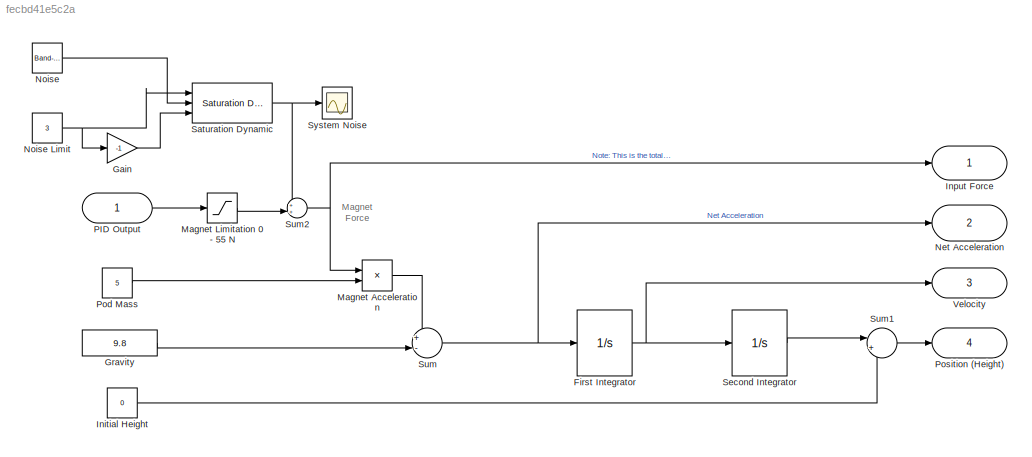
MODEL slx_fecbd41e5c2a
KIND model
CONFIG AbsTol = auto
CONFIG EnableMultiTasking = off
CONFIG FixedStep = auto
CONFIG MaxStep = auto
CONFIG MinStep = auto
CONFIG RelTol = 1e-3
CONFIG SampleTimeConstraint = Unconstrained
CONFIG Solver = VariableStepAuto
CONFIG SolverName = VariableStepAuto
CONFIG StartTime = 0.0
CONFIG StopTime = 10.0
BLOCK [Integrator] First Integrator
  Ports = [1, 1]
BLOCK [Gain] Gain
  Gain = -1
  OutDataTypeStr = Inherit: Inherit via internal rule
  ParamDataTypeStr = Inherit: Inherit via internal rule
  SaturateOnIntegerOverflow = off
BLOCK [Constant] Gravity
  Value = 9.8
BLOCK [Constant] Initial Height
  Value = 0
BLOCK [Outport] Input Force
  IconDisplay = Port number
BLOCK [Product] Magnet Acceleration
  InputSameDT = off
  Inputs = */
  OutDataTypeStr = Inherit: Inherit via internal rule
  Ports = [2, 1]
  RndMeth = Floor
  SaturateOnIntegerOverflow = off
BLOCK [Saturate] Magnet Limitation 0 - 55 N
  InputPortMap = u0
  LowerLimit = 0
  Ports = [1, 1]
  UpperLimit = 55
BLOCK [Outport] Net Acceleration
  IconDisplay = Port number
  Port = 2
BLOCK [Reference] Noise   REF=simulink/Sources/Band-Limited
White Noise
  Ports = [0, 1]
  SourceBlock = simulink/Sources/Band-Limited\nWhite Noise
  SourceProductBaseCode = SL
  SourceProductName = Simulink
  SourceType = Band-Limited White Noise.
BLOCK [Constant] Noise Limit
  Value = 3
BLOCK [Inport] PID Output
  IconDisplay = Port number
BLOCK [Constant] Pod Mass
  Value = 5
BLOCK [Outport] Position (Height)
  IconDisplay = Port number
  Port = 4
BLOCK [Reference] Saturation Dynamic  REF=simulink/Discontinuities/Saturation
Dynamic
  Ports = [3, 1]
  SourceBlock = simulink/Discontinuities/Saturation\nDynamic
  SourceProductBaseCode = SL
  SourceProductName = Simulink
  SourceType = Saturation Dynamic
BLOCK [Integrator] Second Integrator
  Ports = [1, 1]
BLOCK [Sum] Sum
  IconShape = round
  InputSameDT = off
  Inputs = +-|
  OutDataTypeStr = Inherit: Inherit via internal rule
  Ports = [2, 1]
  SaturateOnIntegerOverflow = off
BLOCK [Sum] Sum1
  IconShape = round
  InputSameDT = off
  Inputs = |++
  OutDataTypeStr = Inherit: Inherit via internal rule
  Ports = [2, 1]
  SaturateOnIntegerOverflow = off
BLOCK [Sum] Sum2
  IconShape = round
  InputSameDT = off
  Inputs = ++|
  OutDataTypeStr = Inherit: Inherit via internal rule
  Ports = [2, 1]
  SaturateOnIntegerOverflow = off
BLOCK [Scope] System Noise
  Floating = off
  NumInputPorts = 1
  Ports = [1]
  ScopeSpecificationString = Simulink.scopes.TimeScopeBlockCfg('CurrentConfiguration', extmgr.ConfigurationSet(extmgr.Configuration('Core','General UI',true),extmgr.Configuration('Core','Source UI',true),extmgr.Configuration('Sources','WiredSimulink',true),extmgr.Configuration('Visuals','Time Domain',true,'SerializedDisplays',{struct('MinYLimReal','-8.75','MaxYLimReal','8.75','YLabelReal','','MinYLimMag','0.00000','MaxYLimMag...<+1394ch>
BLOCK [Outport] Velocity 
  IconDisplay = Port number
  Port = 3
ANNOTATION (root): Magnet Force
NET First Integrator:1 -> Second Integrator:1, Velocity :1
LINE Gain:1 -> Saturation Dynamic:3
LINE Gravity:1 -> Sum:2
LINE Initial Height:1 -> Sum1:2
LINE Magnet Acceleration:1 -> Sum:1
LINE Magnet Limitation 0 - 55 N:1 -> Sum2:2
LINE Noise :1 -> Saturation Dynamic:2
NET Noise Limit:1 -> Gain:1, Saturation Dynamic:1
LINE PID Output:1 -> Magnet Limitation 0 - 55 N:1
LINE Pod Mass:1 -> Magnet Acceleration:2
NET Saturation Dynamic:1 -> Sum2:1, System Noise:1
LINE Second Integrator:1 -> Sum1:1
LINE Sum1:1 -> Position (Height):1
NET Sum2:1 -> Input Force:1, Magnet Acceleration:1
NET Sum:1 -> First Integrator:1, Net Acceleration:1
note: NET lines group one-source signal fan-out (src -> all destinations, sorted); 1:1 wires keep LINE
